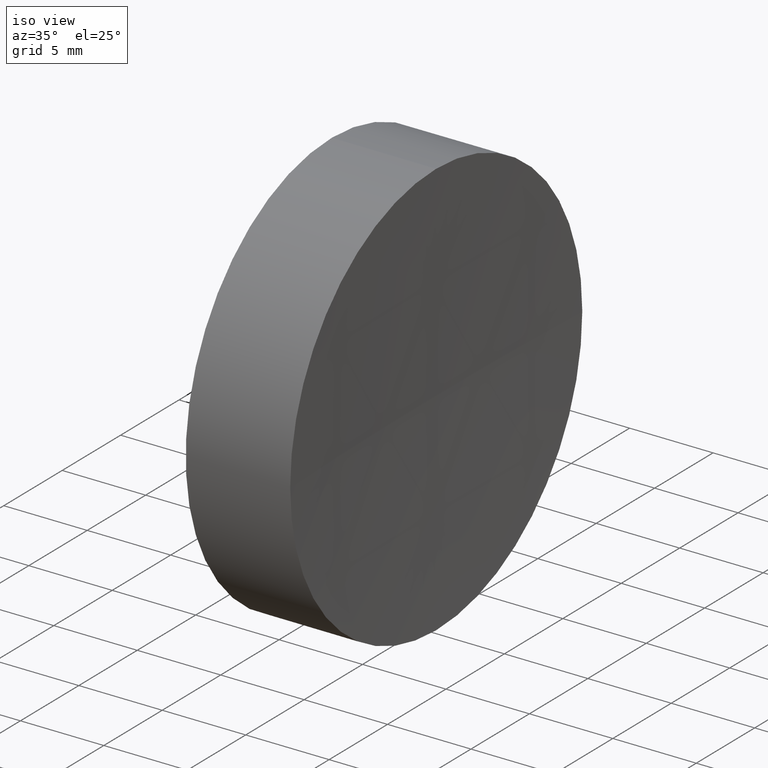
[diagram: clean part render]
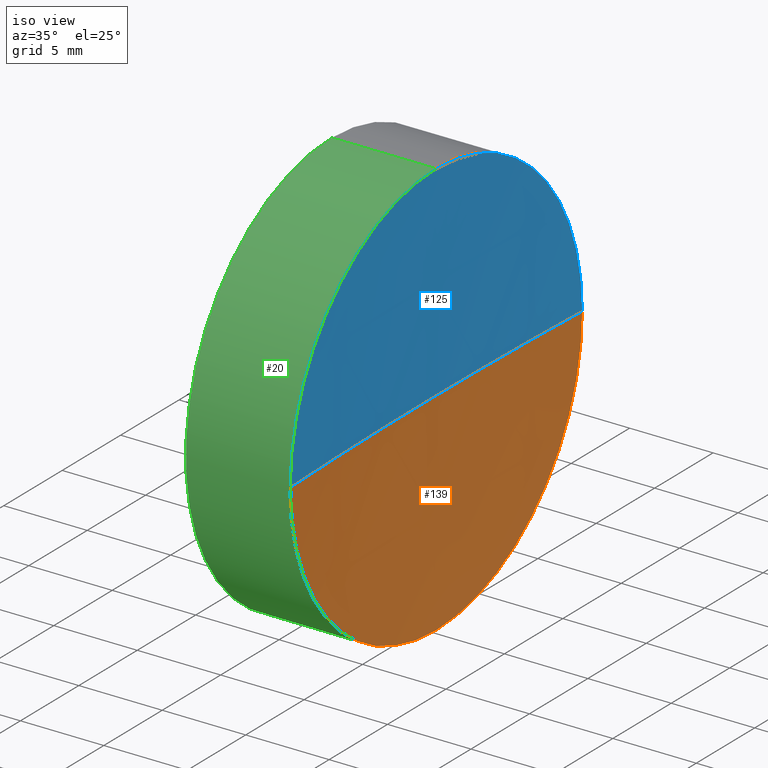
[diagram: same view with three faces highlighted in distinct colors, each labeled with its STEP entity id]
A machine part, iso view with three faces highlighted in distinct colors.
Their STEP definitions:

[orange] entity #139 — the highlighted spherical surface has radius 300 mm.
#6 = VERTEX_POINT ( 'NONE', #15 ) ;
#14 = CARTESIAN_POINT ( 'NONE',  ( 121.3531853088416000, 69.37802112337243400, 0.0000000000000000000 ) ) ;
#15 = CARTESIAN_POINT ( 'NONE',  ( 121.3531853088415900, 56.87802112337222100, 0.0000000000000000000 ) ) ;
#17 = CIRCLE ( 'NONE', #30, 12.50000000000002500 ) ;
#30 = AXIS2_PLACEMENT_3D ( 'NONE', #159, #62, #59 ) ;
#32 = FACE_OUTER_BOUND ( 'NONE', #154, .T. ) ;
#34 = AXIS2_PLACEMENT_3D ( 'NONE', #131, #94, #78 ) ;
#35 = DIRECTION ( 'NONE',  ( 0.0000000000000000000, -1.224646799147353200E-016, 1.000000000000000000 ) ) ;
#36 = CIRCLE ( 'NONE', #58, 300.0000000000000600 ) ;
#42 = ORIENTED_EDGE ( 'NONE', *, *, #151, .T. ) ;
#54 = AXIS2_PLACEMENT_3D ( 'NONE', #14, #169, #136 ) ;
#58 = AXIS2_PLACEMENT_3D ( 'NONE', #143, #127, #115 ) ;
#59 = DIRECTION ( 'NONE',  ( 0.0000000000000000000, 0.0000000000000000000, 1.000000000000000000 ) ) ;
#62 = DIRECTION ( 'NONE',  ( -1.000000000000000000, -0.0000000000000000000, -0.0000000000000000000 ) ) ;
#66 = CARTESIAN_POINT ( 'NONE',  ( 121.3531853088416000, 69.37802112337243400, -12.50000000000002500 ) ) ;
#72 = AXIS2_PLACEMENT_3D ( 'NONE', #106, #35, #81 ) ;
#75 = EDGE_CURVE ( 'NONE', #102, #186, #170, .T. ) ;
#78 = DIRECTION ( 'NONE',  ( 0.0000000000000000000, -1.000000000000000000, 0.0000000000000000000 ) ) ;
#79 = ORIENTED_EDGE ( 'NONE', *, *, #166, .F. ) ;
#81 = DIRECTION ( 'NONE',  ( 0.0000000000000000000, -1.000000000000000000, -1.224646799147353200E-016 ) ) ;
#94 = DIRECTION ( 'NONE',  ( 0.0000000000000000000, 0.0000000000000000000, 1.000000000000000000 ) ) ;
#95 = VERTEX_POINT ( 'NONE', #117 ) ;
#102 = VERTEX_POINT ( 'NONE', #123 ) ;
#106 = CARTESIAN_POINT ( 'NONE',  ( 421.0926555158865800, 69.37802112337246300, 0.0000000000000000000 ) ) ;
#115 = DIRECTION ( 'NONE',  ( -1.000000000000000000, 0.0000000000000000000, 0.0000000000000000000 ) ) ;
#117 = CARTESIAN_POINT ( 'NONE',  ( 121.0926555158865500, 69.37802112337244900, 0.0000000000000000000 ) ) ;
#120 = ORIENTED_EDGE ( 'NONE', *, *, #75, .F. ) ;
#123 = CARTESIAN_POINT ( 'NONE',  ( 121.3531853088415900, 81.87802112337266200, 1.530808498934217400E-015 ) ) ;
#127 = DIRECTION ( 'NONE',  ( 0.0000000000000000000, 0.0000000000000000000, -1.000000000000000000 ) ) ;
#131 = CARTESIAN_POINT ( 'NONE',  ( 421.0926555158865800, 69.37802112337246300, 0.0000000000000000000 ) ) ;
#135 = CIRCLE ( 'NONE', #72, 300.0000000000000600 ) ;
#136 = DIRECTION ( 'NONE',  ( 0.0000000000000000000, 0.0000000000000000000, 1.000000000000000000 ) ) ;
#137 = EDGE_CURVE ( 'NONE', #186, #6, #17, .T. ) ;
#139 = ADVANCED_FACE ( 'NONE', ( #32 ), #156, .F. ) ;
#143 = CARTESIAN_POINT ( 'NONE',  ( 421.0926555158865800, 69.37802112337246300, 0.0000000000000000000 ) ) ;
#151 = EDGE_CURVE ( 'NONE', #102, #95, #135, .T. ) ;
#154 = EDGE_LOOP ( 'NONE', ( #120, #42, #79, #162 ) ) ;
#156 = SPHERICAL_SURFACE ( 'NONE', #34, 300.0000000000000600 ) ;
#159 = CARTESIAN_POINT ( 'NONE',  ( 121.3531853088416000, 69.37802112337243400, 0.0000000000000000000 ) ) ;
#162 = ORIENTED_EDGE ( 'NONE', *, *, #137, .F. ) ;
#166 = EDGE_CURVE ( 'NONE', #6, #95, #36, .T. ) ;
#169 = DIRECTION ( 'NONE',  ( -1.000000000000000000, -0.0000000000000000000, -0.0000000000000000000 ) ) ;
#170 = CIRCLE ( 'NONE', #54, 12.50000000000002500 ) ;
#186 = VERTEX_POINT ( 'NONE', #66 ) ;

[blue] entity #125 — the highlighted spherical surface has radius 300 mm.
#6 = VERTEX_POINT ( 'NONE', #15 ) ;
#11 = DIRECTION ( 'NONE',  ( 0.0000000000000000000, 0.0000000000000000000, 1.000000000000000000 ) ) ;
#13 = AXIS2_PLACEMENT_3D ( 'NONE', #44, #133, #142 ) ;
#15 = CARTESIAN_POINT ( 'NONE',  ( 121.3531853088415900, 56.87802112337222100, 0.0000000000000000000 ) ) ;
#21 = SPHERICAL_SURFACE ( 'NONE', #13, 300.0000000000000600 ) ;
#35 = DIRECTION ( 'NONE',  ( 0.0000000000000000000, -1.224646799147353200E-016, 1.000000000000000000 ) ) ;
#36 = CIRCLE ( 'NONE', #58, 300.0000000000000600 ) ;
#41 = DIRECTION ( 'NONE',  ( -1.000000000000000000, -0.0000000000000000000, -0.0000000000000000000 ) ) ;
#44 = CARTESIAN_POINT ( 'NONE',  ( 421.0926555158865800, 69.37802112337246300, 0.0000000000000000000 ) ) ;
#45 = ORIENTED_EDGE ( 'NONE', *, *, #166, .T. ) ;
#49 = AXIS2_PLACEMENT_3D ( 'NONE', #98, #173, #61 ) ;
#52 = FACE_OUTER_BOUND ( 'NONE', #86, .T. ) ;
#58 = AXIS2_PLACEMENT_3D ( 'NONE', #143, #127, #115 ) ;
#61 = DIRECTION ( 'NONE',  ( 0.0000000000000000000, 0.0000000000000000000, 1.000000000000000000 ) ) ;
#70 = EDGE_CURVE ( 'NONE', #119, #102, #138, .T. ) ;
#72 = AXIS2_PLACEMENT_3D ( 'NONE', #106, #35, #81 ) ;
#76 = CARTESIAN_POINT ( 'NONE',  ( 121.3531853088416000, 69.37802112337243400, 12.50000000000002500 ) ) ;
#81 = DIRECTION ( 'NONE',  ( 0.0000000000000000000, -1.000000000000000000, -1.224646799147353200E-016 ) ) ;
#86 = EDGE_LOOP ( 'NONE', ( #147, #152, #91, #45 ) ) ;
#87 = CIRCLE ( 'NONE', #49, 12.50000000000002500 ) ;
#88 = CARTESIAN_POINT ( 'NONE',  ( 121.3531853088416000, 69.37802112337243400, 0.0000000000000000000 ) ) ;
#91 = ORIENTED_EDGE ( 'NONE', *, *, #141, .F. ) ;
#95 = VERTEX_POINT ( 'NONE', #117 ) ;
#98 = CARTESIAN_POINT ( 'NONE',  ( 121.3531853088416000, 69.37802112337243400, 0.0000000000000000000 ) ) ;
#102 = VERTEX_POINT ( 'NONE', #123 ) ;
#106 = CARTESIAN_POINT ( 'NONE',  ( 421.0926555158865800, 69.37802112337246300, 0.0000000000000000000 ) ) ;
#115 = DIRECTION ( 'NONE',  ( -1.000000000000000000, 0.0000000000000000000, 0.0000000000000000000 ) ) ;
#117 = CARTESIAN_POINT ( 'NONE',  ( 121.0926555158865500, 69.37802112337244900, 0.0000000000000000000 ) ) ;
#119 = VERTEX_POINT ( 'NONE', #76 ) ;
#123 = CARTESIAN_POINT ( 'NONE',  ( 121.3531853088415900, 81.87802112337266200, 1.530808498934217400E-015 ) ) ;
#125 = ADVANCED_FACE ( 'NONE', ( #52 ), #21, .F. ) ;
#127 = DIRECTION ( 'NONE',  ( 0.0000000000000000000, 0.0000000000000000000, -1.000000000000000000 ) ) ;
#133 = DIRECTION ( 'NONE',  ( 0.0000000000000000000, 0.0000000000000000000, 1.000000000000000000 ) ) ;
#135 = CIRCLE ( 'NONE', #72, 300.0000000000000600 ) ;
#138 = CIRCLE ( 'NONE', #149, 12.50000000000002500 ) ;
#141 = EDGE_CURVE ( 'NONE', #6, #119, #87, .T. ) ;
#142 = DIRECTION ( 'NONE',  ( 0.0000000000000000000, -1.000000000000000000, 0.0000000000000000000 ) ) ;
#143 = CARTESIAN_POINT ( 'NONE',  ( 421.0926555158865800, 69.37802112337246300, 0.0000000000000000000 ) ) ;
#147 = ORIENTED_EDGE ( 'NONE', *, *, #151, .F. ) ;
#149 = AXIS2_PLACEMENT_3D ( 'NONE', #88, #41, #11 ) ;
#151 = EDGE_CURVE ( 'NONE', #102, #95, #135, .T. ) ;
#152 = ORIENTED_EDGE ( 'NONE', *, *, #70, .F. ) ;
#166 = EDGE_CURVE ( 'NONE', #6, #95, #36, .T. ) ;
#173 = DIRECTION ( 'NONE',  ( -1.000000000000000000, -0.0000000000000000000, -0.0000000000000000000 ) ) ;

[green] entity #20 — the highlighted cylindrical surface (partial cylindrical patch) has radius 12.5 mm, axis along (-1, -0, -0).
#2 = CARTESIAN_POINT ( 'NONE',  ( 108.9851430021651000, 69.37802112337243400, 12.50000000000001100 ) ) ;
#6 = VERTEX_POINT ( 'NONE', #15 ) ;
#9 = VECTOR ( 'NONE', #96, 1000.000000000000000 ) ;
#15 = CARTESIAN_POINT ( 'NONE',  ( 121.3531853088415900, 56.87802112337222100, 0.0000000000000000000 ) ) ;
#17 = CIRCLE ( 'NONE', #30, 12.50000000000002500 ) ;
#18 = DIRECTION ( 'NONE',  ( 0.0000000000000000000, 0.0000000000000000000, 1.000000000000000000 ) ) ;
#20 = ADVANCED_FACE ( 'NONE', ( #128 ), #126, .T. ) ;
#22 = AXIS2_PLACEMENT_3D ( 'NONE', #185, #83, #18 ) ;
#27 = ORIENTED_EDGE ( 'NONE', *, *, #29, .F. ) ;
#28 = CARTESIAN_POINT ( 'NONE',  ( 115.0926555349195200, 69.37802112337243400, 12.49999999999999600 ) ) ;
#29 = EDGE_CURVE ( 'NONE', #121, #77, #174, .T. ) ;
#30 = AXIS2_PLACEMENT_3D ( 'NONE', #159, #62, #59 ) ;
#37 = CARTESIAN_POINT ( 'NONE',  ( 108.9851430021651000, 69.37802112337243400, -12.50000000000001100 ) ) ;
#46 = LINE ( 'NONE', #37, #9 ) ;
#47 = ORIENTED_EDGE ( 'NONE', *, *, #137, .T. ) ;
#49 = AXIS2_PLACEMENT_3D ( 'NONE', #98, #173, #61 ) ;
#51 = ORIENTED_EDGE ( 'NONE', *, *, #146, .F. ) ;
#55 = DIRECTION ( 'NONE',  ( -1.000000000000000000, -0.0000000000000000000, -0.0000000000000000000 ) ) ;
#56 = CARTESIAN_POINT ( 'NONE',  ( 108.9851430021651000, 69.37802112337243400, 0.0000000000000000000 ) ) ;
#59 = DIRECTION ( 'NONE',  ( 0.0000000000000000000, 0.0000000000000000000, 1.000000000000000000 ) ) ;
#61 = DIRECTION ( 'NONE',  ( 0.0000000000000000000, 0.0000000000000000000, 1.000000000000000000 ) ) ;
#62 = DIRECTION ( 'NONE',  ( -1.000000000000000000, -0.0000000000000000000, -0.0000000000000000000 ) ) ;
#66 = CARTESIAN_POINT ( 'NONE',  ( 121.3531853088416000, 69.37802112337243400, -12.50000000000002500 ) ) ;
#68 = ORIENTED_EDGE ( 'NONE', *, *, #163, .T. ) ;
#76 = CARTESIAN_POINT ( 'NONE',  ( 121.3531853088416000, 69.37802112337243400, 12.50000000000002500 ) ) ;
#77 = VERTEX_POINT ( 'NONE', #28 ) ;
#83 = DIRECTION ( 'NONE',  ( -1.000000000000000000, -0.0000000000000000000, -0.0000000000000000000 ) ) ;
#87 = CIRCLE ( 'NONE', #49, 12.50000000000002500 ) ;
#96 = DIRECTION ( 'NONE',  ( -1.000000000000000000, -0.0000000000000000000, -0.0000000000000000000 ) ) ;
#98 = CARTESIAN_POINT ( 'NONE',  ( 121.3531853088416000, 69.37802112337243400, 0.0000000000000000000 ) ) ;
#100 = AXIS2_PLACEMENT_3D ( 'NONE', #56, #55, #181 ) ;
#105 = DIRECTION ( 'NONE',  ( -1.000000000000000000, -0.0000000000000000000, -0.0000000000000000000 ) ) ;
#119 = VERTEX_POINT ( 'NONE', #76 ) ;
#121 = VERTEX_POINT ( 'NONE', #130 ) ;
#126 = CYLINDRICAL_SURFACE ( 'NONE', #100, 12.50000000000001100 ) ;
#128 = FACE_OUTER_BOUND ( 'NONE', #183, .T. ) ;
#129 = VECTOR ( 'NONE', #105, 1000.000000000000000 ) ;
#130 = CARTESIAN_POINT ( 'NONE',  ( 115.0926555349195200, 69.37802112337243400, -12.49999999999999600 ) ) ;
#137 = EDGE_CURVE ( 'NONE', #186, #6, #17, .T. ) ;
#141 = EDGE_CURVE ( 'NONE', #6, #119, #87, .T. ) ;
#146 = EDGE_CURVE ( 'NONE', #186, #121, #46, .T. ) ;
#153 = LINE ( 'NONE', #2, #129 ) ;
#159 = CARTESIAN_POINT ( 'NONE',  ( 121.3531853088416000, 69.37802112337243400, 0.0000000000000000000 ) ) ;
#163 = EDGE_CURVE ( 'NONE', #119, #77, #153, .T. ) ;
#173 = DIRECTION ( 'NONE',  ( -1.000000000000000000, -0.0000000000000000000, -0.0000000000000000000 ) ) ;
#174 = CIRCLE ( 'NONE', #22, 12.49999999999999600 ) ;
#179 = ORIENTED_EDGE ( 'NONE', *, *, #141, .T. ) ;
#181 = DIRECTION ( 'NONE',  ( 0.0000000000000000000, 0.0000000000000000000, 1.000000000000000000 ) ) ;
#183 = EDGE_LOOP ( 'NONE', ( #51, #47, #179, #68, #27 ) ) ;
#185 = CARTESIAN_POINT ( 'NONE',  ( 115.0926555349195200, 69.37802112337243400, 0.0000000000000000000 ) ) ;
#186 = VERTEX_POINT ( 'NONE', #66 ) ;